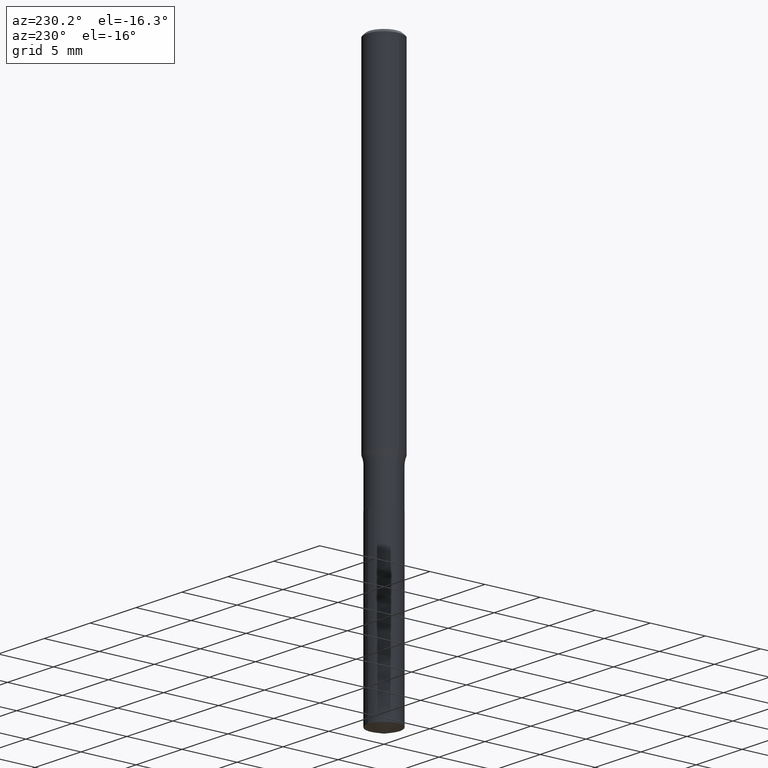
[diagram: clean part render]
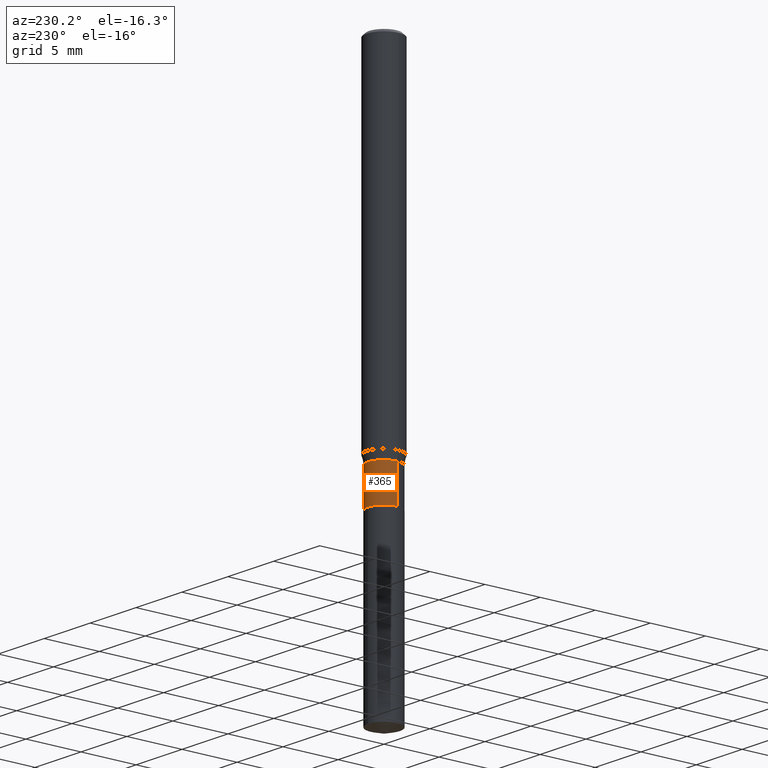
[diagram: same view with one face highlighted and labeled with its STEP entity id]
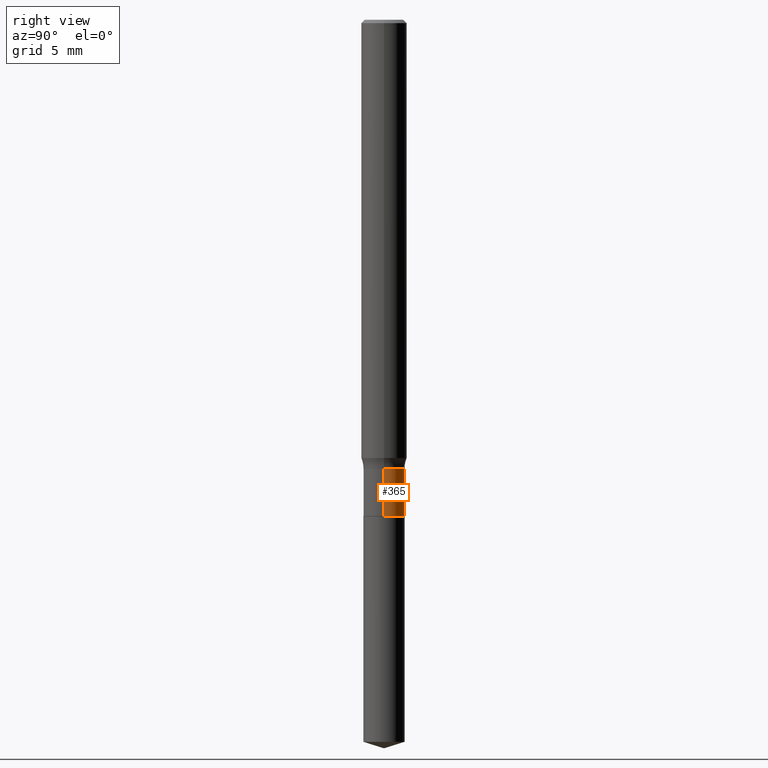
[diagram: same view with one face highlighted and labeled with its STEP entity id]
A machine part, auxiliary view. The second image highlights one B-rep face of the part: STEP entity #365.
A second angle (right view) of the same face is appended — the face is thin or edge-on in the first view.
In plain terms, the highlighted cylindrical surface (edge-blend (fillet) strip) has radius 1.4351 mm, axis along (-0, 0, 1).
Its self-contained STEP definition (entity closure, byte-faithful):
#7 = FACE_OUTER_BOUND ( 'NONE', #454, .T. ) ;
#8 = VERTEX_POINT ( 'NONE', #432 ) ;
#25 = CARTESIAN_POINT ( 'NONE',  ( 0.05649999999999998079, -4.699533882082872201E-15, -1.232999999999999874 ) ) ;
#42 = CIRCLE ( 'NONE', #200, 0.05650000000000000855 ) ;
#48 = VECTOR ( 'NONE', #217, 39.37007874015748143 ) ;
#53 = ORIENTED_EDGE ( 'NONE', *, *, #113, .T. ) ;
#58 = CARTESIAN_POINT ( 'NONE',  ( 0.05650000000000000161, -3.945373912892740553E-16, 2.755039878324703835E-30 ) ) ;
#70 = ORIENTED_EDGE ( 'NONE', *, *, #307, .F. ) ;
#111 = CARTESIAN_POINT ( 'NONE',  ( 3.015263038026273343E-29, -4.304996490793598195E-15, -1.232999999999999874 ) ) ;
#113 = EDGE_CURVE ( 'NONE', #389, #264, #179, .T. ) ;
#120 = DIRECTION ( 'NONE',  ( -2.445468806185136597E-29, 3.491481338843145583E-15, 1.000000000000000000 ) ) ;
#139 = DIRECTION ( 'NONE',  ( -2.445468806185136877E-29, 3.491481338843145188E-15, 1.000000000000000000 ) ) ;
#154 = DIRECTION ( 'NONE',  ( 1.000000000000000000, -6.982962677686257244E-15, 0.000000000000000000 ) ) ;
#160 = CYLINDRICAL_SURFACE ( 'NONE', #376, 0.05650000000000000161 ) ;
#179 = LINE ( 'NONE', #335, #388 ) ;
#189 = EDGE_CURVE ( 'NONE', #303, #264, #438, .T. ) ;
#200 = AXIS2_PLACEMENT_3D ( 'NONE', #354, #455, #419 ) ;
#212 = CARTESIAN_POINT ( 'NONE',  ( -0.05649999999999998079, -4.129613261779235411E-15, -1.232999999999999874 ) ) ;
#217 = DIRECTION ( 'NONE',  ( -2.445468806185136877E-29, 3.491481338843145188E-15, 1.000000000000000000 ) ) ;
#263 = DIRECTION ( 'NONE',  ( -2.445468806185136597E-29, 3.491481338843145583E-15, 1.000000000000000000 ) ) ;
#264 = VERTEX_POINT ( 'NONE', #212 ) ;
#296 = DIRECTION ( 'NONE',  ( 1.000000000000000000, -6.982962677686265922E-15, 4.876176775795935793E-29 ) ) ;
#303 = VERTEX_POINT ( 'NONE', #25 ) ;
#307 = EDGE_CURVE ( 'NONE', #8, #303, #434, .T. ) ;
#310 = CARTESIAN_POINT ( 'NONE',  ( 0.000000000000000000, 0.000000000000000000, 0.000000000000000000 ) ) ;
#316 = ORIENTED_EDGE ( 'NONE', *, *, #189, .F. ) ;
#335 = CARTESIAN_POINT ( 'NONE',  ( -0.05650000000000000161, 4.014566457044566165E-16, -2.779198325994021632E-30 ) ) ;
#347 = ORIENTED_EDGE ( 'NONE', *, *, #480, .T. ) ;
#354 = CARTESIAN_POINT ( 'NONE',  ( 3.331951248427248949E-29, -4.757143324173785763E-15, -1.362500000000000044 ) ) ;
#365 = ADVANCED_FACE ( 'NONE', ( #7 ), #160, .T. ) ;
#376 = AXIS2_PLACEMENT_3D ( 'NONE', #310, #120, #296 ) ;
#388 = VECTOR ( 'NONE', #139, 39.37007874015748143 ) ;
#389 = VERTEX_POINT ( 'NONE', #402 ) ;
#402 = CARTESIAN_POINT ( 'NONE',  ( -0.05650000000000000855, -4.129613261779235411E-15, -1.362500000000000044 ) ) ;
#419 = DIRECTION ( 'NONE',  ( 1.000000000000000000, -6.982962677686271444E-15, 0.000000000000000000 ) ) ;
#432 = CARTESIAN_POINT ( 'NONE',  ( 0.05650000000000000855, -5.151680715463060558E-15, -1.362500000000000044 ) ) ;
#434 = LINE ( 'NONE', #58, #48 ) ;
#438 = CIRCLE ( 'NONE', #481, 0.05649999999999998079 ) ;
#454 = EDGE_LOOP ( 'NONE', ( #347, #53, #316, #70 ) ) ;
#455 = DIRECTION ( 'NONE',  ( -2.445468806185136597E-29, 3.491481338843145583E-15, 1.000000000000000000 ) ) ;
#480 = EDGE_CURVE ( 'NONE', #8, #389, #42, .T. ) ;
#481 = AXIS2_PLACEMENT_3D ( 'NONE', #111, #263, #154 ) ;